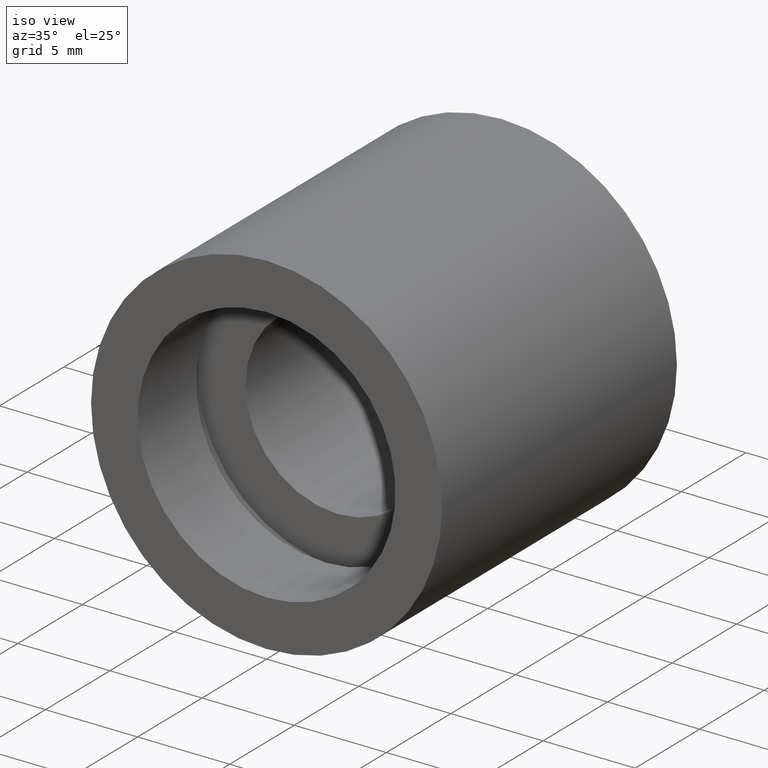
[diagram: clean part render]
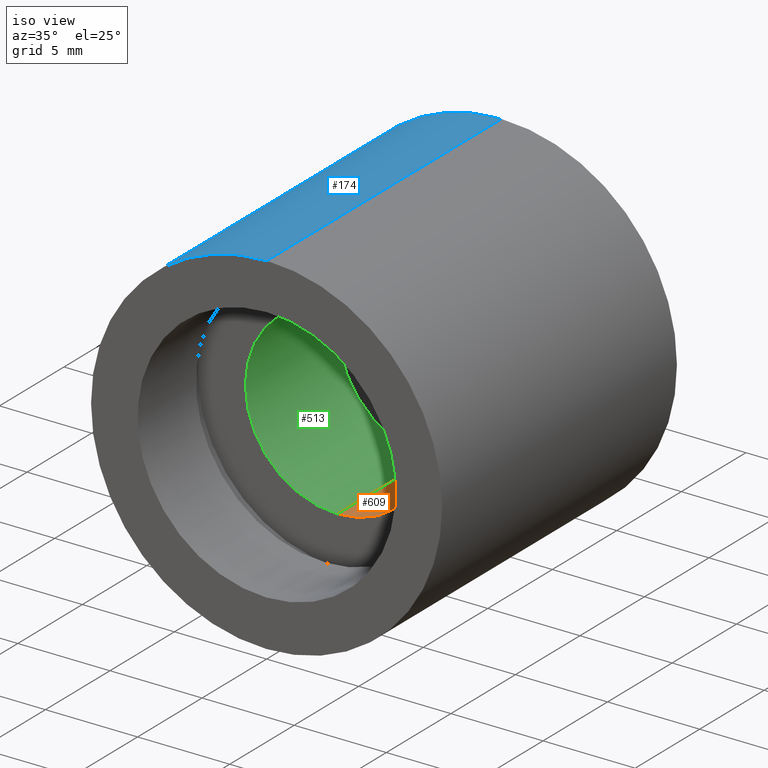
[diagram: same view with three faces highlighted in distinct colors, each labeled with its STEP entity id]
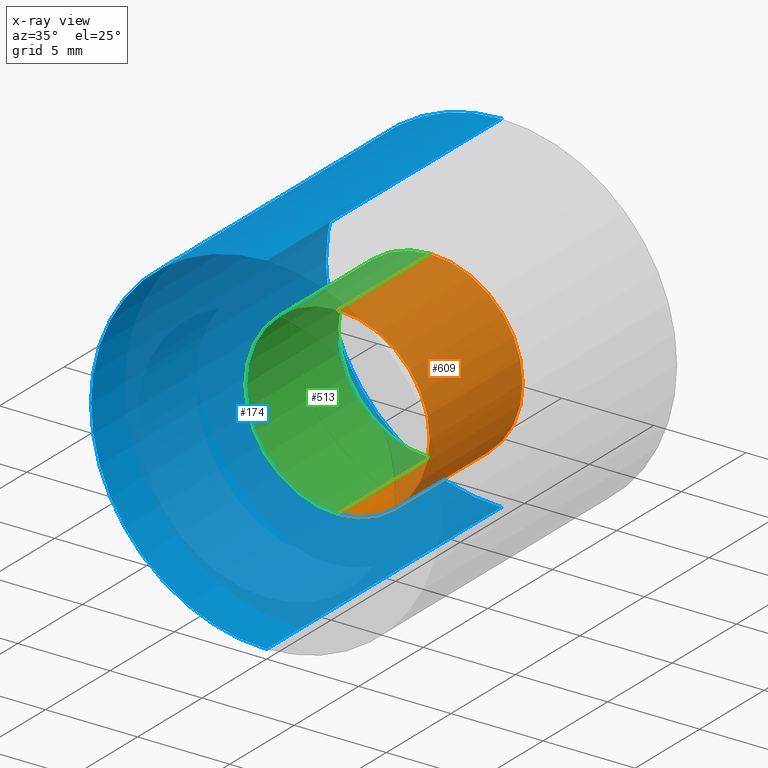
[diagram: x-ray of the same camera — body ghosted, the three highlighted faces saturated]
A machine part, iso view with three faces highlighted in distinct colors.
The next image is the same camera in x-ray (body ghosted, the three faces saturated) — at least one of them is partly hidden behind the body in this view.
Their STEP definitions:

[orange] entity #609 — the highlighted cylindrical surface (partial cylindrical patch) has radius 5 mm, axis along (-0, 1, -0).
#20 = VERTEX_POINT ( 'NONE', #148 ) ;
#34 = CARTESIAN_POINT ( 'NONE',  ( 0.0000000000000000000, 161.3761669434274500, 5.000000000000019500 ) ) ;
#36 = CARTESIAN_POINT ( 'NONE',  ( 0.0000000000000000000, 12.69999999999998900, 5.000000000000019500 ) ) ;
#63 = VERTEX_POINT ( 'NONE', #105 ) ;
#85 = ORIENTED_EDGE ( 'NONE', *, *, #303, .F. ) ;
#105 = CARTESIAN_POINT ( 'NONE',  ( 6.123233995736789000E-016, 5.499999999999976900, -5.000000000000019500 ) ) ;
#111 = ORIENTED_EDGE ( 'NONE', *, *, #136, .F. ) ;
#124 = LINE ( 'NONE', #34, #530 ) ;
#126 = CARTESIAN_POINT ( 'NONE',  ( 6.123233995736789000E-016, 161.3761669434274500, -5.000000000000019500 ) ) ;
#136 = EDGE_CURVE ( 'NONE', #550, #63, #352, .T. ) ;
#147 = CARTESIAN_POINT ( 'NONE',  ( 0.0000000000000000000, 161.3761669434274500, 0.0000000000000000000 ) ) ;
#148 = CARTESIAN_POINT ( 'NONE',  ( 6.123233995736789000E-016, 12.69999999999998900, -5.000000000000019500 ) ) ;
#150 = CARTESIAN_POINT ( 'NONE',  ( 0.0000000000000000000, 5.499999999999976900, 5.000000000000019500 ) ) ;
#199 = AXIS2_PLACEMENT_3D ( 'NONE', #147, #396, #304 ) ;
#209 = VECTOR ( 'NONE', #375, 1000.000000000000000 ) ;
#226 = CIRCLE ( 'NONE', #574, 5.000000000000019500 ) ;
#246 = CYLINDRICAL_SURFACE ( 'NONE', #199, 5.000000000000019500 ) ;
#250 = DIRECTION ( 'NONE',  ( 0.0000000000000000000, 0.0000000000000000000, 1.000000000000000000 ) ) ;
#257 = ORIENTED_EDGE ( 'NONE', *, *, #541, .T. ) ;
#273 = AXIS2_PLACEMENT_3D ( 'NONE', #418, #481, #572 ) ;
#303 = EDGE_CURVE ( 'NONE', #63, #20, #540, .T. ) ;
#304 = DIRECTION ( 'NONE',  ( 0.0000000000000000000, 0.0000000000000000000, 1.000000000000000000 ) ) ;
#315 = EDGE_LOOP ( 'NONE', ( #85, #111, #428, #257 ) ) ;
#324 = FACE_OUTER_BOUND ( 'NONE', #315, .T. ) ;
#341 = CARTESIAN_POINT ( 'NONE',  ( 0.0000000000000000000, 12.69999999999998900, 0.0000000000000000000 ) ) ;
#352 = CIRCLE ( 'NONE', #273, 5.000000000000019500 ) ;
#364 = EDGE_CURVE ( 'NONE', #550, #452, #124, .T. ) ;
#375 = DIRECTION ( 'NONE',  ( -0.0000000000000000000, 1.000000000000000000, -0.0000000000000000000 ) ) ;
#396 = DIRECTION ( 'NONE',  ( -0.0000000000000000000, 1.000000000000000000, -0.0000000000000000000 ) ) ;
#418 = CARTESIAN_POINT ( 'NONE',  ( 0.0000000000000000000, 5.499999999999976900, 0.0000000000000000000 ) ) ;
#425 = DIRECTION ( 'NONE',  ( -0.0000000000000000000, 1.000000000000000000, -0.0000000000000000000 ) ) ;
#428 = ORIENTED_EDGE ( 'NONE', *, *, #364, .T. ) ;
#452 = VERTEX_POINT ( 'NONE', #36 ) ;
#481 = DIRECTION ( 'NONE',  ( -0.0000000000000000000, 1.000000000000000000, -0.0000000000000000000 ) ) ;
#489 = DIRECTION ( 'NONE',  ( -0.0000000000000000000, 1.000000000000000000, -0.0000000000000000000 ) ) ;
#530 = VECTOR ( 'NONE', #425, 1000.000000000000000 ) ;
#540 = LINE ( 'NONE', #126, #209 ) ;
#541 = EDGE_CURVE ( 'NONE', #452, #20, #226, .T. ) ;
#550 = VERTEX_POINT ( 'NONE', #150 ) ;
#572 = DIRECTION ( 'NONE',  ( 0.0000000000000000000, 0.0000000000000000000, 1.000000000000000000 ) ) ;
#574 = AXIS2_PLACEMENT_3D ( 'NONE', #341, #489, #250 ) ;
#609 = ADVANCED_FACE ( 'NONE', ( #324 ), #246, .F. ) ;

[blue] entity #174 — the highlighted cylindrical surface (partial cylindrical patch) has radius 9.525 mm, axis along (-0, 1, -0).
#27 = CARTESIAN_POINT ( 'NONE',  ( 0.0000000000000000000, -2.775557561562891400E-014, 0.0000000000000000000 ) ) ;
#28 = VECTOR ( 'NONE', #561, 1000.000000000000000 ) ;
#37 = DIRECTION ( 'NONE',  ( -0.0000000000000000000, 1.000000000000000000, -0.0000000000000000000 ) ) ;
#45 = ORIENTED_EDGE ( 'NONE', *, *, #332, .T. ) ;
#60 = FACE_OUTER_BOUND ( 'NONE', #299, .T. ) ;
#65 = ORIENTED_EDGE ( 'NONE', *, *, #348, .F. ) ;
#76 = DIRECTION ( 'NONE',  ( -0.0000000000000000000, 1.000000000000000000, -0.0000000000000000000 ) ) ;
#78 = VERTEX_POINT ( 'NONE', #153 ) ;
#96 = LINE ( 'NONE', #615, #28 ) ;
#102 = EDGE_CURVE ( 'NONE', #78, #545, #429, .T. ) ;
#113 = VERTEX_POINT ( 'NONE', #183 ) ;
#131 = CARTESIAN_POINT ( 'NONE',  ( 0.0000000000000000000, 161.3761669434274500, 0.0000000000000000000 ) ) ;
#145 = CARTESIAN_POINT ( 'NONE',  ( 0.0000000000000000000, 18.19999999999999600, 9.525000000000019900 ) ) ;
#153 = CARTESIAN_POINT ( 'NONE',  ( 1.166476076187856400E-015, 18.19999999999999600, -9.525000000000019900 ) ) ;
#174 = ADVANCED_FACE ( 'NONE', ( #60 ), #334, .T. ) ;
#178 = CARTESIAN_POINT ( 'NONE',  ( 1.166476076187856400E-015, -2.775557561562891400E-014, -9.525000000000019900 ) ) ;
#180 = VECTOR ( 'NONE', #335, 1000.000000000000000 ) ;
#183 = CARTESIAN_POINT ( 'NONE',  ( 0.0000000000000000000, -2.775557561562891400E-014, 9.525000000000019900 ) ) ;
#239 = DIRECTION ( 'NONE',  ( 0.0000000000000000000, 0.0000000000000000000, 1.000000000000000000 ) ) ;
#276 = DIRECTION ( 'NONE',  ( 0.0000000000000000000, 0.0000000000000000000, 1.000000000000000000 ) ) ;
#299 = EDGE_LOOP ( 'NONE', ( #65, #45, #554, #374 ) ) ;
#316 = VERTEX_POINT ( 'NONE', #178 ) ;
#332 = EDGE_CURVE ( 'NONE', #316, #113, #411, .T. ) ;
#334 = CYLINDRICAL_SURFACE ( 'NONE', #388, 9.525000000000019900 ) ;
#335 = DIRECTION ( 'NONE',  ( -0.0000000000000000000, 1.000000000000000000, -0.0000000000000000000 ) ) ;
#348 = EDGE_CURVE ( 'NONE', #316, #78, #96, .T. ) ;
#370 = AXIS2_PLACEMENT_3D ( 'NONE', #27, #76, #239 ) ;
#373 = EDGE_CURVE ( 'NONE', #113, #545, #403, .T. ) ;
#374 = ORIENTED_EDGE ( 'NONE', *, *, #102, .F. ) ;
#388 = AXIS2_PLACEMENT_3D ( 'NONE', #131, #37, #276 ) ;
#403 = LINE ( 'NONE', #571, #180 ) ;
#411 = CIRCLE ( 'NONE', #370, 9.525000000000019900 ) ;
#429 = CIRCLE ( 'NONE', #595, 9.525000000000019900 ) ;
#476 = CARTESIAN_POINT ( 'NONE',  ( 0.0000000000000000000, 18.19999999999999600, 0.0000000000000000000 ) ) ;
#518 = DIRECTION ( 'NONE',  ( 0.0000000000000000000, 0.0000000000000000000, 1.000000000000000000 ) ) ;
#545 = VERTEX_POINT ( 'NONE', #145 ) ;
#554 = ORIENTED_EDGE ( 'NONE', *, *, #373, .T. ) ;
#561 = DIRECTION ( 'NONE',  ( -0.0000000000000000000, 1.000000000000000000, -0.0000000000000000000 ) ) ;
#564 = DIRECTION ( 'NONE',  ( -0.0000000000000000000, 1.000000000000000000, -0.0000000000000000000 ) ) ;
#571 = CARTESIAN_POINT ( 'NONE',  ( 0.0000000000000000000, 161.3761669434274500, 9.525000000000019900 ) ) ;
#595 = AXIS2_PLACEMENT_3D ( 'NONE', #476, #564, #518 ) ;
#615 = CARTESIAN_POINT ( 'NONE',  ( 1.166476076187856400E-015, 161.3761669434274500, -9.525000000000019900 ) ) ;

[green] entity #513 — the highlighted cylindrical surface (partial cylindrical patch) has radius 5 mm, axis along (-0, 1, -0).
#5 = EDGE_LOOP ( 'NONE', ( #168, #387, #214, #605 ) ) ;
#8 = DIRECTION ( 'NONE',  ( 0.0000000000000000000, 0.0000000000000000000, 1.000000000000000000 ) ) ;
#19 = EDGE_CURVE ( 'NONE', #63, #550, #117, .T. ) ;
#20 = VERTEX_POINT ( 'NONE', #148 ) ;
#34 = CARTESIAN_POINT ( 'NONE',  ( 0.0000000000000000000, 161.3761669434274500, 5.000000000000019500 ) ) ;
#36 = CARTESIAN_POINT ( 'NONE',  ( 0.0000000000000000000, 12.69999999999998900, 5.000000000000019500 ) ) ;
#63 = VERTEX_POINT ( 'NONE', #105 ) ;
#79 = DIRECTION ( 'NONE',  ( -0.0000000000000000000, 1.000000000000000000, -0.0000000000000000000 ) ) ;
#95 = DIRECTION ( 'NONE',  ( 0.0000000000000000000, 0.0000000000000000000, 1.000000000000000000 ) ) ;
#105 = CARTESIAN_POINT ( 'NONE',  ( 6.123233995736789000E-016, 5.499999999999976900, -5.000000000000019500 ) ) ;
#106 = FACE_OUTER_BOUND ( 'NONE', #5, .T. ) ;
#117 = CIRCLE ( 'NONE', #624, 5.000000000000019500 ) ;
#122 = CARTESIAN_POINT ( 'NONE',  ( 0.0000000000000000000, 12.69999999999998900, 0.0000000000000000000 ) ) ;
#124 = LINE ( 'NONE', #34, #530 ) ;
#126 = CARTESIAN_POINT ( 'NONE',  ( 6.123233995736789000E-016, 161.3761669434274500, -5.000000000000019500 ) ) ;
#139 = DIRECTION ( 'NONE',  ( -0.0000000000000000000, 1.000000000000000000, -0.0000000000000000000 ) ) ;
#148 = CARTESIAN_POINT ( 'NONE',  ( 6.123233995736789000E-016, 12.69999999999998900, -5.000000000000019500 ) ) ;
#150 = CARTESIAN_POINT ( 'NONE',  ( 0.0000000000000000000, 5.499999999999976900, 5.000000000000019500 ) ) ;
#168 = ORIENTED_EDGE ( 'NONE', *, *, #19, .F. ) ;
#176 = DIRECTION ( 'NONE',  ( 0.0000000000000000000, 0.0000000000000000000, 1.000000000000000000 ) ) ;
#200 = CARTESIAN_POINT ( 'NONE',  ( 0.0000000000000000000, 161.3761669434274500, 0.0000000000000000000 ) ) ;
#209 = VECTOR ( 'NONE', #375, 1000.000000000000000 ) ;
#214 = ORIENTED_EDGE ( 'NONE', *, *, #234, .T. ) ;
#234 = EDGE_CURVE ( 'NONE', #20, #452, #363, .T. ) ;
#252 = DIRECTION ( 'NONE',  ( -0.0000000000000000000, 1.000000000000000000, -0.0000000000000000000 ) ) ;
#303 = EDGE_CURVE ( 'NONE', #63, #20, #540, .T. ) ;
#363 = CIRCLE ( 'NONE', #505, 5.000000000000019500 ) ;
#364 = EDGE_CURVE ( 'NONE', #550, #452, #124, .T. ) ;
#375 = DIRECTION ( 'NONE',  ( -0.0000000000000000000, 1.000000000000000000, -0.0000000000000000000 ) ) ;
#387 = ORIENTED_EDGE ( 'NONE', *, *, #303, .T. ) ;
#425 = DIRECTION ( 'NONE',  ( -0.0000000000000000000, 1.000000000000000000, -0.0000000000000000000 ) ) ;
#452 = VERTEX_POINT ( 'NONE', #36 ) ;
#493 = CARTESIAN_POINT ( 'NONE',  ( 0.0000000000000000000, 5.499999999999976900, 0.0000000000000000000 ) ) ;
#505 = AXIS2_PLACEMENT_3D ( 'NONE', #122, #79, #176 ) ;
#513 = ADVANCED_FACE ( 'NONE', ( #106 ), #600, .F. ) ;
#530 = VECTOR ( 'NONE', #425, 1000.000000000000000 ) ;
#540 = LINE ( 'NONE', #126, #209 ) ;
#550 = VERTEX_POINT ( 'NONE', #150 ) ;
#553 = AXIS2_PLACEMENT_3D ( 'NONE', #200, #252, #8 ) ;
#600 = CYLINDRICAL_SURFACE ( 'NONE', #553, 5.000000000000019500 ) ;
#605 = ORIENTED_EDGE ( 'NONE', *, *, #364, .F. ) ;
#624 = AXIS2_PLACEMENT_3D ( 'NONE', #493, #139, #95 ) ;